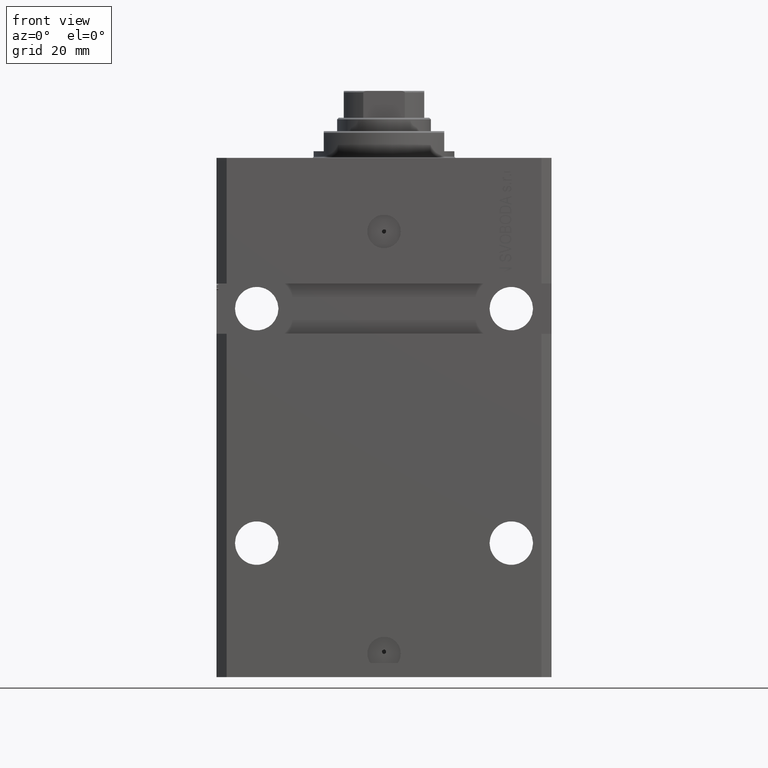
[diagram: clean part render]
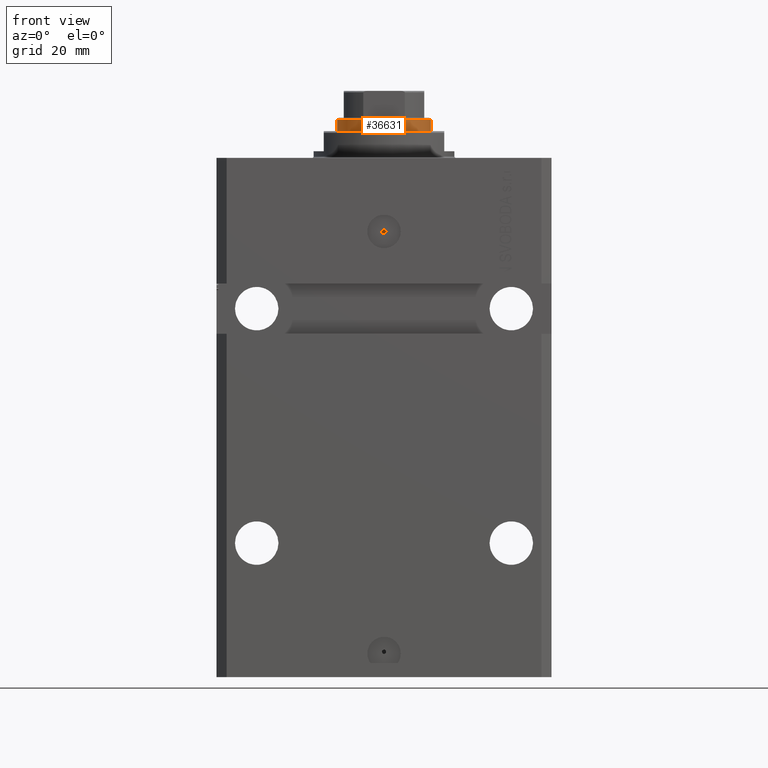
[diagram: same view with one face highlighted and labeled with its STEP entity id]
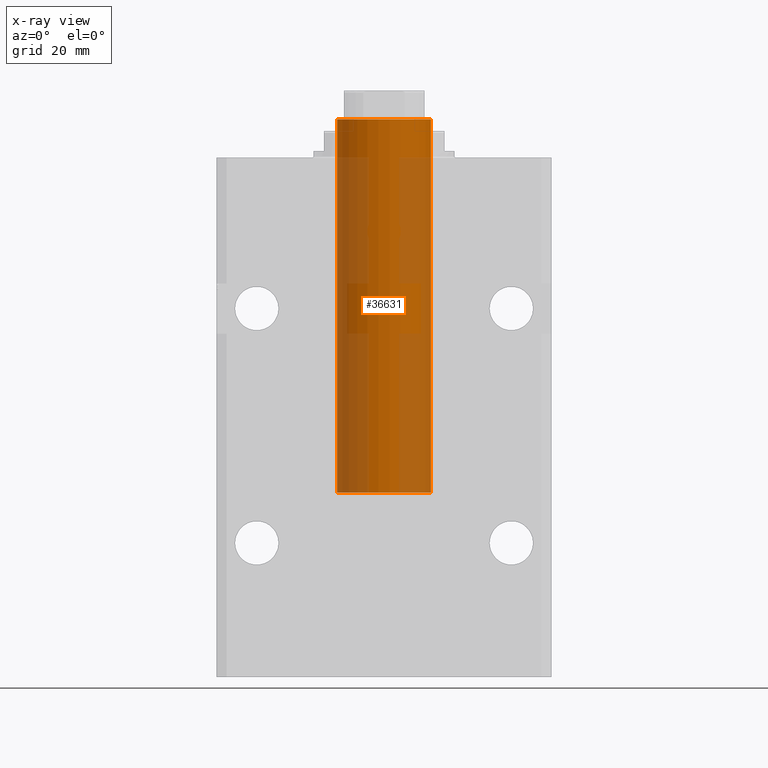
[diagram: x-ray of the same camera — body ghosted, the highlighted face saturated]
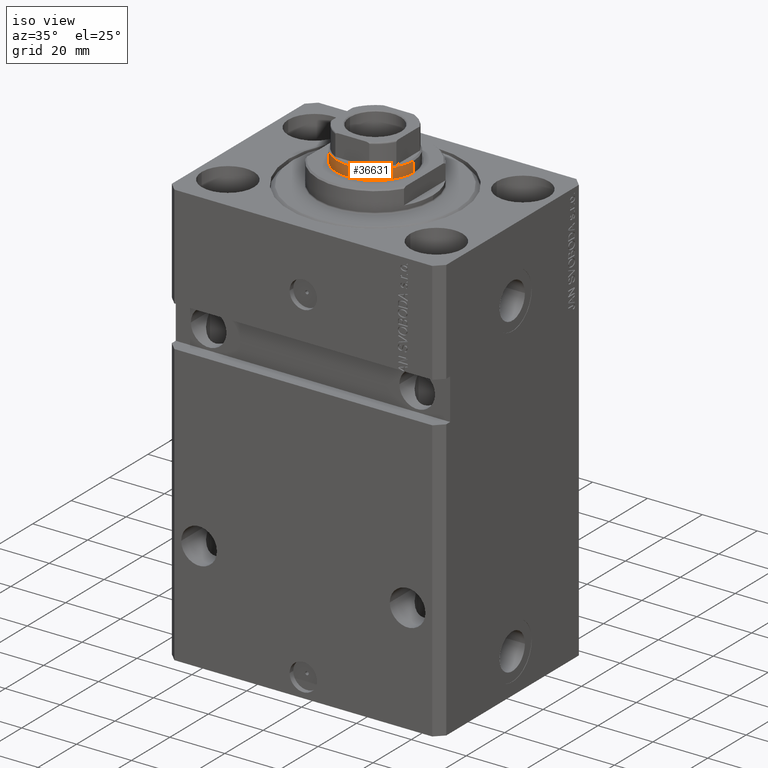
[diagram: same view with one face highlighted and labeled with its STEP entity id]
A machine part, front view. The second image highlights one B-rep face of the part: STEP entity #36631.
The next image is the same camera in x-ray: the body ghosted, the highlighted face saturated — about 55% of this face is hidden behind the body in this view.
A second angle (iso view) of the same face is appended — the face is thin or edge-on in the first view.
In plain terms, the highlighted cylindrical surface (partial cylindrical patch) has radius 14 mm, axis along (-0, -0, -1).
Its self-contained STEP definition (entity closure, byte-faithful):
#1779 = CARTESIAN_POINT ( 'NONE',  ( -14.00000000000000000, 0.000000000000000000, 154.6000000000000512 ) ) ;
#1828 = ORIENTED_EDGE ( 'NONE', *, *, #9201, .F. ) ;
#2398 = EDGE_CURVE ( 'NONE', #18747, #30378, #20328, .T. ) ;
#2946 = EDGE_CURVE ( 'NONE', #15850, #12503, #42140, .T. ) ;
#3826 = CYLINDRICAL_SURFACE ( 'NONE', #33066, 14.00000000000000000 ) ;
#4022 = CARTESIAN_POINT ( 'NONE',  ( 14.00000000000000000, 1.714505518806294638E-15, 155.1000000000000227 ) ) ;
#8898 = DIRECTION ( 'NONE',  ( 0.000000000000000000, 0.000000000000000000, 1.000000000000000000 ) ) ;
#9201 = EDGE_CURVE ( 'NONE', #15850, #30378, #14722, .T. ) ;
#11592 = FACE_OUTER_BOUND ( 'NONE', #16822, .T. ) ;
#12503 = VERTEX_POINT ( 'NONE', #1779 ) ;
#13629 = DIRECTION ( 'NONE',  ( 1.000000000000000000, 0.000000000000000000, 0.000000000000000000 ) ) ;
#14722 = LINE ( 'NONE', #4022, #18196 ) ;
#15850 = VERTEX_POINT ( 'NONE', #31099 ) ;
#16822 = EDGE_LOOP ( 'NONE', ( #1828, #35006, #46476, #43917 ) ) ;
#18196 = VECTOR ( 'NONE', #40360, 1000.000000000000000 ) ;
#18684 = DIRECTION ( 'NONE',  ( -0.000000000000000000, -0.000000000000000000, -1.000000000000000000 ) ) ;
#18747 = VERTEX_POINT ( 'NONE', #47421 ) ;
#20328 = CIRCLE ( 'NONE', #36695, 14.00000000000000000 ) ;
#21194 = CARTESIAN_POINT ( 'NONE',  ( 0.000000000000000000, 0.000000000000000000, 154.6000000000000512 ) ) ;
#23698 = LINE ( 'NONE', #31497, #26234 ) ;
#23765 = DIRECTION ( 'NONE',  ( 1.000000000000000000, 0.000000000000000000, 0.000000000000000000 ) ) ;
#24232 = AXIS2_PLACEMENT_3D ( 'NONE', #21194, #39269, #13629 ) ;
#25993 = CARTESIAN_POINT ( 'NONE',  ( 0.000000000000000000, 0.000000000000000000, 155.1000000000000227 ) ) ;
#26234 = VECTOR ( 'NONE', #35160, 1000.000000000000000 ) ;
#30378 = VERTEX_POINT ( 'NONE', #32677 ) ;
#31099 = CARTESIAN_POINT ( 'NONE',  ( 14.00000000000000000, 1.714505518806294638E-15, 154.6000000000000512 ) ) ;
#31497 = CARTESIAN_POINT ( 'NONE',  ( -14.00000000000000000, 0.000000000000000000, 155.1000000000000227 ) ) ;
#32677 = CARTESIAN_POINT ( 'NONE',  ( 14.00000000000000000, 1.714505518806294638E-15, 43.10000000000000142 ) ) ;
#33066 = AXIS2_PLACEMENT_3D ( 'NONE', #25993, #18684, #36737 ) ;
#35006 = ORIENTED_EDGE ( 'NONE', *, *, #2946, .T. ) ;
#35160 = DIRECTION ( 'NONE',  ( -0.000000000000000000, -0.000000000000000000, -1.000000000000000000 ) ) ;
#36631 = ADVANCED_FACE ( 'NONE', ( #11592 ), #3826, .T. ) ;
#36695 = AXIS2_PLACEMENT_3D ( 'NONE', #42323, #8898, #23765 ) ;
#36737 = DIRECTION ( 'NONE',  ( -1.000000000000000000, 0.000000000000000000, 0.000000000000000000 ) ) ;
#39269 = DIRECTION ( 'NONE',  ( 0.000000000000000000, 0.000000000000000000, -1.000000000000000000 ) ) ;
#40360 = DIRECTION ( 'NONE',  ( -0.000000000000000000, -0.000000000000000000, -1.000000000000000000 ) ) ;
#42140 = CIRCLE ( 'NONE', #24232, 14.00000000000000000 ) ;
#42323 = CARTESIAN_POINT ( 'NONE',  ( 0.000000000000000000, 0.000000000000000000, 43.10000000000000142 ) ) ;
#43041 = EDGE_CURVE ( 'NONE', #12503, #18747, #23698, .T. ) ;
#43917 = ORIENTED_EDGE ( 'NONE', *, *, #2398, .T. ) ;
#46476 = ORIENTED_EDGE ( 'NONE', *, *, #43041, .T. ) ;
#47421 = CARTESIAN_POINT ( 'NONE',  ( -14.00000000000000000, 0.000000000000000000, 43.10000000000000142 ) ) ;